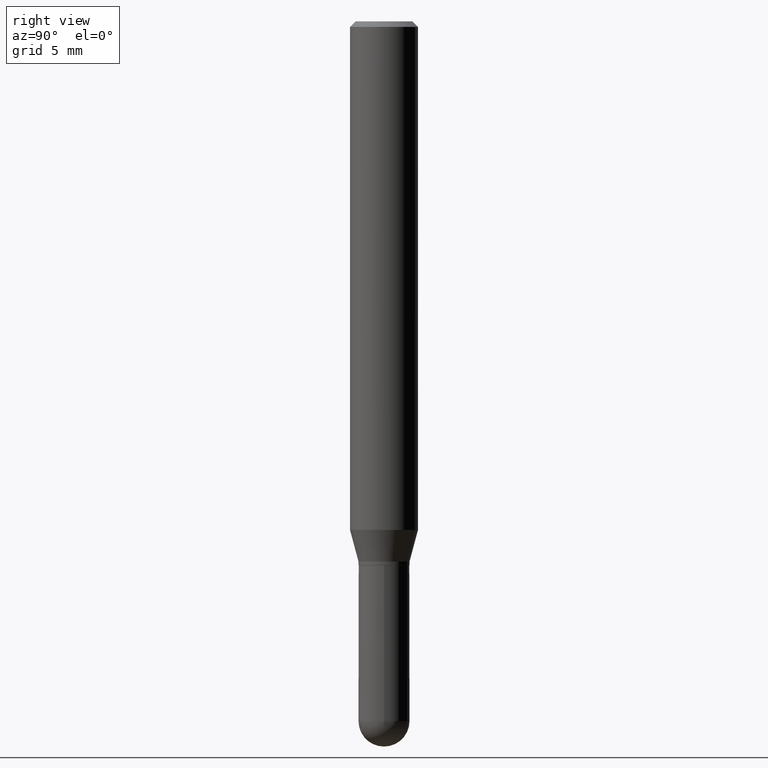
[diagram: clean part render]
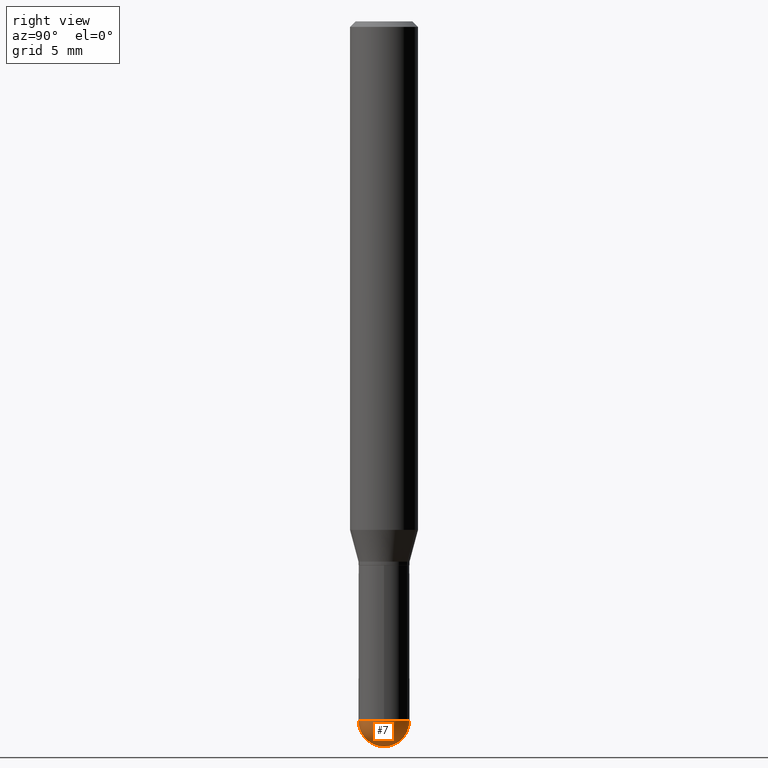
[diagram: same view with one face highlighted and labeled with its STEP entity id]
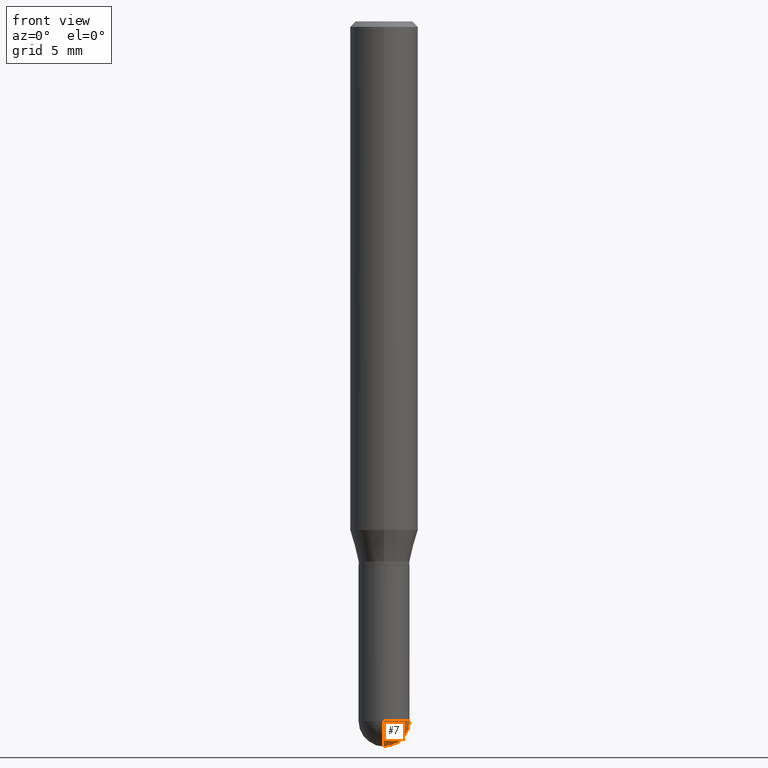
[diagram: same view with one face highlighted and labeled with its STEP entity id]
A machine part, right view. The second image highlights one B-rep face of the part: STEP entity #7.
A second angle (front view) of the same face is appended — the face is thin or edge-on in the first view.
In plain terms, the highlighted spherical surface has radius 1.7856 mm.
Its self-contained STEP definition (entity closure, byte-faithful):
#1 = EDGE_CURVE ( 'NONE', #200, #512, #430, .T. ) ;
#7 = ADVANCED_FACE ( 'NONE', ( #124 ), #339, .T. ) ;
#44 = DIRECTION ( 'NONE',  ( -1.000000000000000000, 7.105427357601001070E-15, -4.926315508542082329E-29 ) ) ;
#45 = VERTEX_POINT ( 'NONE', #255 ) ;
#48 = AXIS2_PLACEMENT_3D ( 'NONE', #478, #44, #444 ) ;
#58 = CIRCLE ( 'NONE', #199, 0.07030000000000002913 ) ;
#71 = CARTESIAN_POINT ( 'NONE',  ( -4.995115432393033060E-16, -0.07030000000000674598, -1.929699999999999527 ) ) ;
#88 = AXIS2_PLACEMENT_3D ( 'NONE', #313, #127, #116 ) ;
#90 = CARTESIAN_POINT ( 'NONE',  ( 4.719021155295457704E-29, -6.737511539565617508E-15, -1.929699999999999971 ) ) ;
#116 = DIRECTION ( 'NONE',  ( 1.000000000000000000, -6.982962677686261189E-15, 0.000000000000000000 ) ) ;
#124 = FACE_OUTER_BOUND ( 'NONE', #472, .T. ) ;
#127 = DIRECTION ( 'NONE',  ( -2.445468806185136597E-29, 3.491481338843145583E-15, 1.000000000000000000 ) ) ;
#134 = VERTEX_POINT ( 'NONE', #71 ) ;
#142 = CARTESIAN_POINT ( 'NONE',  ( 0.07030000000000004301, -6.478269050156512001E-15, -1.929699999999999971 ) ) ;
#152 = CIRCLE ( 'NONE', #88, 0.07030000000000004301 ) ;
#196 = DIRECTION ( 'NONE',  ( 6.982962677686266711E-15, 1.000000000000000000, 0.000000000000000000 ) ) ;
#199 = AXIS2_PLACEMENT_3D ( 'NONE', #305, #354, #196 ) ;
#200 = VERTEX_POINT ( 'NONE', #142 ) ;
#205 = DIRECTION ( 'NONE',  ( 1.000000000000000000, -6.982962677686261189E-15, 0.000000000000000000 ) ) ;
#207 = ORIENTED_EDGE ( 'NONE', *, *, #386, .T. ) ;
#255 = CARTESIAN_POINT ( 'NONE',  ( 4.930690017322777259E-29, -6.926034971227925253E-15, -2.000000000000000000 ) ) ;
#271 = AXIS2_PLACEMENT_3D ( 'NONE', #419, #382, #345 ) ;
#276 = CARTESIAN_POINT ( 'NONE',  ( 4.909022762413921804E-16, 0.07029999999999332616, -1.929700000000000193 ) ) ;
#293 = CIRCLE ( 'NONE', #48, 0.07030000000000002913 ) ;
#305 = CARTESIAN_POINT ( 'NONE',  ( 4.755767650741496407E-29, -6.684888466606255625E-15, -1.929699999999999971 ) ) ;
#313 = CARTESIAN_POINT ( 'NONE',  ( 4.719021155295457704E-29, -6.737511539565617508E-15, -1.929699999999999971 ) ) ;
#339 = SPHERICAL_SURFACE ( 'NONE', #271, 0.07030000000000002913 ) ;
#340 = ORIENTED_EDGE ( 'NONE', *, *, #501, .F. ) ;
#345 = DIRECTION ( 'NONE',  ( 6.982962677686265922E-15, 1.000000000000000000, -3.885985766236503808E-15 ) ) ;
#354 = DIRECTION ( 'NONE',  ( 1.000000000000000000, -6.982962677686265922E-15, 4.883557194083112340E-29 ) ) ;
#382 = DIRECTION ( 'NONE',  ( -1.000000000000000000, 6.982962677686265922E-15, -4.883557194083112340E-29 ) ) ;
#386 = EDGE_CURVE ( 'NONE', #45, #512, #58, .T. ) ;
#419 = CARTESIAN_POINT ( 'NONE',  ( 4.755767650741496407E-29, -6.684888466606255625E-15, -1.929699999999999971 ) ) ;
#430 = CIRCLE ( 'NONE', #497, 0.07030000000000004301 ) ;
#438 = ORIENTED_EDGE ( 'NONE', *, *, #1, .F. ) ;
#440 = EDGE_CURVE ( 'NONE', #134, #200, #152, .T. ) ;
#444 = DIRECTION ( 'NONE',  ( -7.105427357601001859E-15, -1.000000000000000000, 0.000000000000000000 ) ) ;
#452 = ORIENTED_EDGE ( 'NONE', *, *, #440, .F. ) ;
#457 = DIRECTION ( 'NONE',  ( -2.445468806185136597E-29, 3.491481338843145583E-15, 1.000000000000000000 ) ) ;
#472 = EDGE_LOOP ( 'NONE', ( #340, #207, #438, #452 ) ) ;
#478 = CARTESIAN_POINT ( 'NONE',  ( 4.755767650741496407E-29, -6.684888466606255625E-15, -1.929699999999999971 ) ) ;
#497 = AXIS2_PLACEMENT_3D ( 'NONE', #90, #457, #205 ) ;
#501 = EDGE_CURVE ( 'NONE', #45, #134, #293, .T. ) ;
#512 = VERTEX_POINT ( 'NONE', #276 ) ;